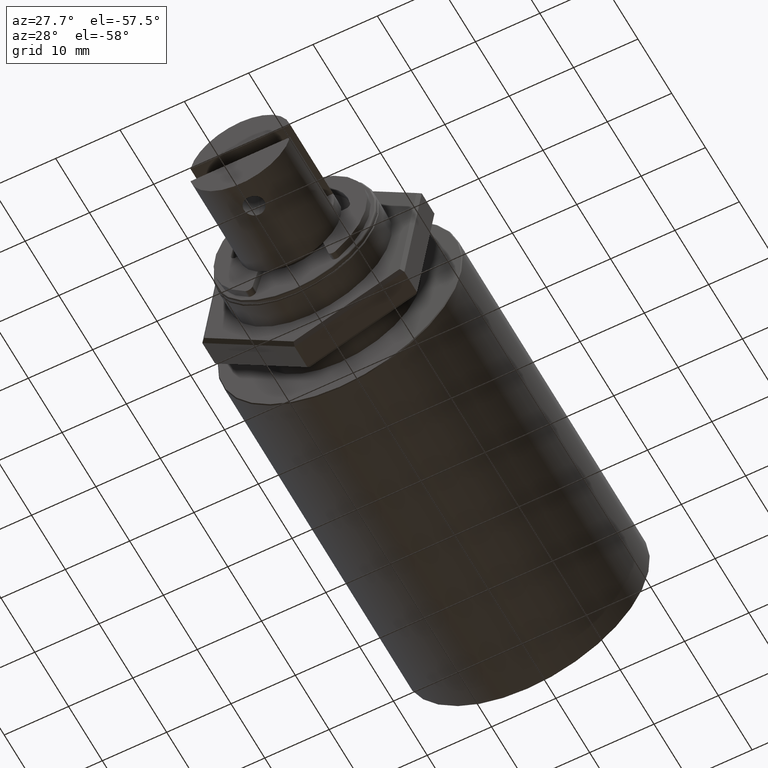
[diagram: clean part render]
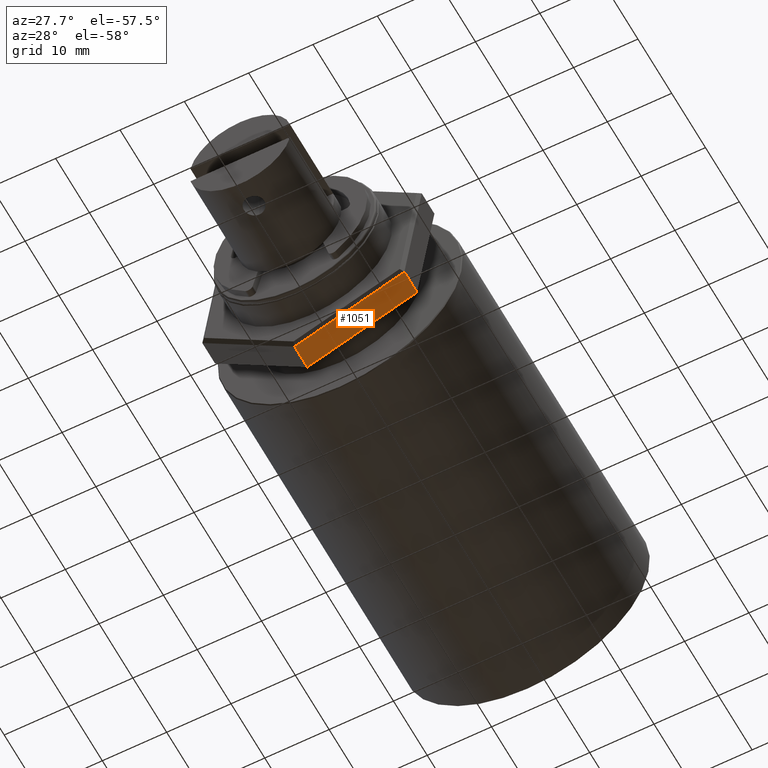
[diagram: same view with one face highlighted and labeled with its STEP entity id]
A machine part, auxiliary view. The second image highlights one B-rep face of the part: STEP entity #1051.
In plain terms, the highlighted planar face has unit normal (-0.3668, 0, 0.9303).
Its self-contained STEP definition (entity closure, byte-faithful):
#141=ORIENTED_EDGE('',*,*,#411,.T.);
#142=ORIENTED_EDGE('',*,*,#413,.T.);
#143=ORIENTED_EDGE('',*,*,#414,.F.);
#144=ORIENTED_EDGE('',*,*,#415,.T.);
#411=EDGE_CURVE('',#548,#547,#645,.T.);
#413=EDGE_CURVE('',#547,#549,#647,.T.);
#414=EDGE_CURVE('',#550,#549,#648,.T.);
#415=EDGE_CURVE('',#550,#548,#649,.T.);
#547=VERTEX_POINT('',#1665);
#548=VERTEX_POINT('',#1667);
#549=VERTEX_POINT('',#1671);
#550=VERTEX_POINT('',#1673);
#645=LINE('',#1666,#725);
#647=LINE('',#1670,#727);
#648=LINE('',#1672,#728);
#649=LINE('',#1674,#729);
#725=VECTOR('',#1321,1.);
#727=VECTOR('',#1325,1.);
#728=VECTOR('',#1326,1.);
#729=VECTOR('',#1327,1.);
#804=EDGE_LOOP('',(#141,#142,#143,#144));
#906=FACE_BOUND('',#804,.T.);
#1010=PLANE('',#1185);
#1051=ADVANCED_FACE('',(#906),#1010,.F.);
#1185=AXIS2_PLACEMENT_3D('',#1669,#1323,#1324);
#1321=DIRECTION('',(0.,0.,-1.));
#1323=DIRECTION('',(-0.930286180641258,0.36683459775204,0.));
#1324=DIRECTION('',(-0.36683459775204,-0.930286180641258,0.));
#1325=DIRECTION('',(0.36683459775204,0.930286180641258,0.));
#1326=DIRECTION('',(0.,0.,-1.));
#1327=DIRECTION('',(-0.36683459775204,-0.930286180641258,0.));
#1665=CARTESIAN_POINT('',(0.0114060942642367,-0.0143499772462774,0.00447675));
#1666=CARTESIAN_POINT('',(0.0114060942642367,-0.0143499772462774,0.00873125));
#1667=CARTESIAN_POINT('',(0.0114060942642367,-0.0143499772462774,0.00822325));
#1669=CARTESIAN_POINT('',(0.01476829311768,-0.00582349923931362,0.00873125));
#1670=CARTESIAN_POINT('',(0.01476829311768,-0.00582349923931362,0.00447675));
#1671=CARTESIAN_POINT('',(0.0181304919711232,0.0027029787676502,0.00447675));
#1672=CARTESIAN_POINT('',(0.0181304919711232,0.0027029787676502,0.00873125));
#1673=CARTESIAN_POINT('',(0.0181304919711232,0.0027029787676502,0.00822325));
#1674=CARTESIAN_POINT('',(0.0114060942642367,-0.0143499772462774,0.00822325));